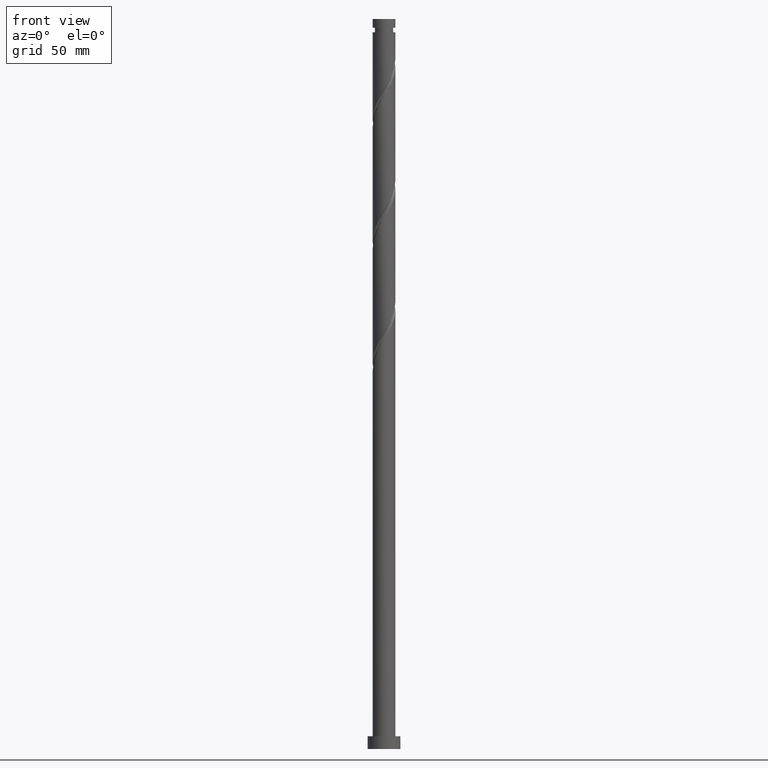
[diagram: clean part render]
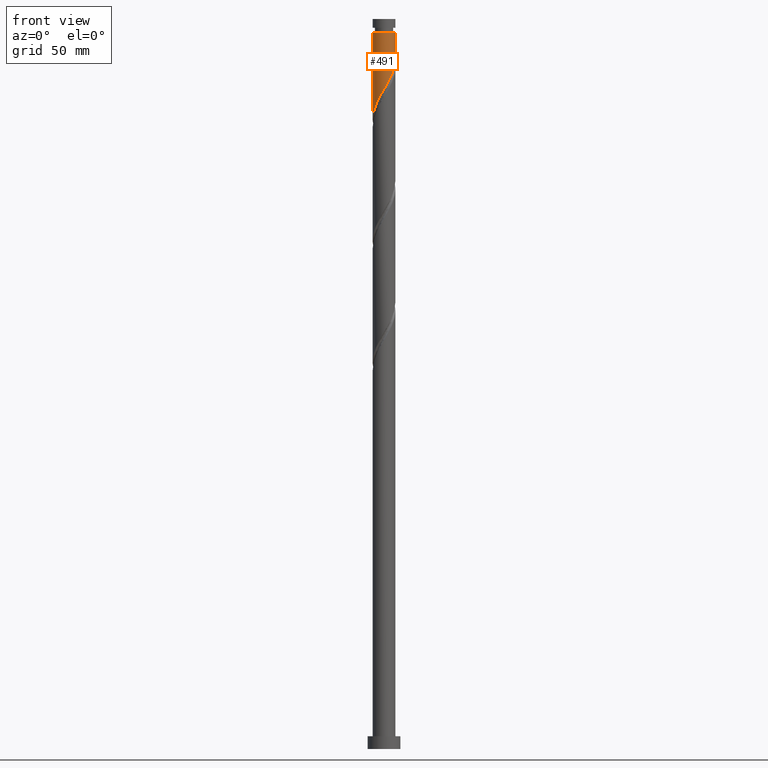
[diagram: same view with one face highlighted and labeled with its STEP entity id]
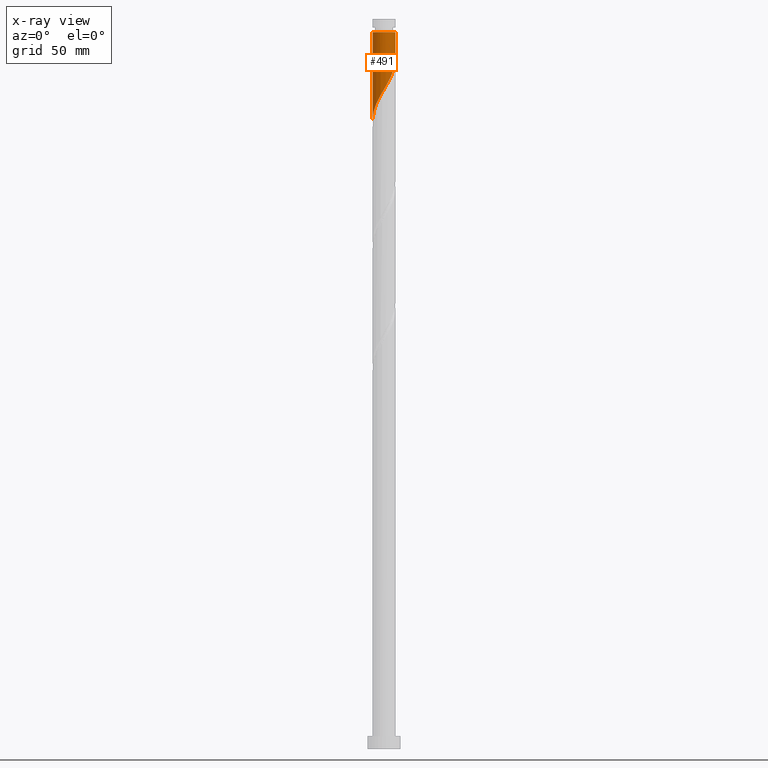
[diagram: x-ray of the same camera — body ghosted, the highlighted face saturated]
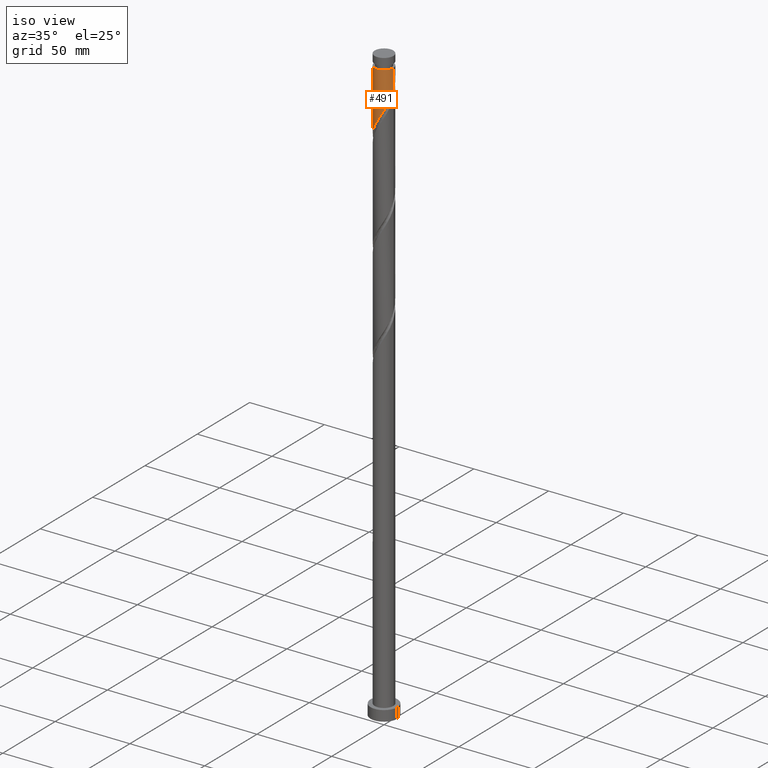
[diagram: same view with one face highlighted and labeled with its STEP entity id]
A machine part, front view. The second image highlights one B-rep face of the part: STEP entity #491.
The next image is the same camera in x-ray: the body ghosted, the highlighted face saturated — about 0% of this face is hidden behind the body in this view.
A second angle (iso view) of the same face is appended — the face is thin or edge-on in the first view.
In plain terms, the highlighted cylindrical surface (edge-blend (fillet) strip) has radius 6.25 mm, axis along (-0, -0, -1).
Its self-contained STEP definition (entity closure, byte-faithful):
#26 = CARTESIAN_POINT ( 'NONE',  ( 6.221452243844894703, -0.5966841522592505331, 377.1899980009226852 ) ) ;
#34 = FACE_OUTER_BOUND ( 'NONE', #196, .T. ) ;
#45 = DIRECTION ( 'NONE',  ( -1.000000000000000000, 0.000000000000000000, 0.000000000000000000 ) ) ;
#59 = CARTESIAN_POINT ( 'NONE',  ( 3.719541372160785286, -5.022699670574009012, 368.3011091120338278 ) ) ;
#89 = CARTESIAN_POINT ( 'NONE',  ( 6.250000000000000000, 7.654042494670957606E-16, 400.0000000000000000 ) ) ;
#129 = EDGE_CURVE ( 'NONE', #1016, #1712, #411, .T. ) ;
#132 = CARTESIAN_POINT ( 'NONE',  ( 6.249999999999963585, 7.654042494670935913E-16, 392.7455535564783418 ) ) ;
#158 = ORIENTED_EDGE ( 'NONE', *, *, #129, .F. ) ;
#178 = ORIENTED_EDGE ( 'NONE', *, *, #305, .T. ) ;
#196 = EDGE_LOOP ( 'NONE', ( #591, #178, #1490, #158 ) ) ;
#213 = DIRECTION ( 'NONE',  ( -0.000000000000000000, -0.000000000000000000, -1.000000000000000000 ) ) ;
#217 = CARTESIAN_POINT ( 'NONE',  ( 5.440886128238414443, -3.075590697661639616, 372.7455535564781712 ) ) ;
#248 = CARTESIAN_POINT ( 'NONE',  ( 0.000000000000000000, 0.000000000000000000, 392.7455535564783418 ) ) ;
#305 = EDGE_CURVE ( 'NONE', #360, #1748, #1524, .T. ) ;
#317 = DIRECTION ( 'NONE',  ( -0.000000000000000000, -0.000000000000000000, -1.000000000000000000 ) ) ;
#360 = VERTEX_POINT ( 'NONE', #132 ) ;
#384 = CARTESIAN_POINT ( 'NONE',  ( -5.383982739937292372, -3.174150257322001956, 350.5233313342559995 ) ) ;
#404 = CARTESIAN_POINT ( 'NONE',  ( -3.627469755814538566, -5.089593615471751598, 354.9677757787005135 ) ) ;
#411 =( BOUNDED_CURVE ( )  B_SPLINE_CURVE ( 2, ( #813, #961, #26, #1797, #553, #1964, #217, #1453, #732, #1331, #59, #1619, #845, #1191, #564, #1157, #689, #1010, #1496, #1609, #1954, #575, #404, #1788, #1779, #415, #384, #1628, #1484, #700, #1030, #1168, #1807 ),
 .UNSPECIFIED., .F., .T. ) 
 B_SPLINE_CURVE_WITH_KNOTS ( ( 3, 2, 2, 2, 2, 2, 2, 2, 2, 2, 2, 2, 2, 2, 2, 2, 3 ),
 ( 0.3045286012773114614, 0.3083333333333333481, 0.3166666666666666519, 0.3250000000000000111, 0.3333333333333333148, 0.3416666666666666741, 0.3499999999999999778, 0.3583333333333333370, 0.3666666666666666408, 0.3750000000000000000, 0.3833333333333333592, 0.3916666666666666630, 0.4000000000000000222, 0.4083333333333333259, 0.4166666666666666852, 0.4249999999999999889, 0.4295286012773114059 ),
 .UNSPECIFIED. ) 
 CURVE ( )  GEOMETRIC_REPRESENTATION_ITEM ( )  RATIONAL_B_SPLINE_CURVE ( ( 0.9066196499552214849, 0.9068171577856342092, 0.9090909090909331525, 0.9041108139711813152, 0.9090909090909331525, 0.9041108139711813152, 0.9090909090909331525, 0.9041108139711813152, 0.9090909090909331525, 0.9041108139711813152, 0.9090909090909331525, 0.9041108139711813152, 0.9090909090909331525, 0.9041108139711813152, 0.9090909090909331525, 0.9041108139711813152, 0.9090909090909331525, 0.9041108139711813152, 0.9090909090909331525, 0.9041108139711813152, 0.9090909090909331525, 0.9041108139711813152, 0.9090909090909331525, 0.9041108139711813152, 0.9090909090909331525, 0.9041108139711813152, 0.9090909090909331525, 0.9041108139711813152, 0.9090909090909331525, 0.9041108139711813152, 0.9090909090909331525, 0.9063845652764802585, 0.9066196499552214849 ) ) 
 REPRESENTATION_ITEM ( '' )  );
#415 = CARTESIAN_POINT ( 'NONE',  ( -5.050366104523113187, -3.740029645886714160, 351.6344424453671991 ) ) ;
#455 = AXIS2_PLACEMENT_3D ( 'NONE', #248, #1146, #873 ) ;
#481 = CARTESIAN_POINT ( 'NONE',  ( 0.000000000000000000, 0.000000000000000000, 400.0000000000000000 ) ) ;
#491 = ADVANCED_FACE ( 'NONE', ( #34 ), #939, .T. ) ;
#553 = CARTESIAN_POINT ( 'NONE',  ( 5.961440974416451155, -1.877157827288006953, 374.9677757787004566 ) ) ;
#564 = CARTESIAN_POINT ( 'NONE',  ( 1.355054121864011973, -6.101338240650107103, 363.8566646675894276 ) ) ;
#575 = CARTESIAN_POINT ( 'NONE',  ( -3.092531911047311066, -5.470856050106012169, 356.0788868898116561 ) ) ;
#591 = ORIENTED_EDGE ( 'NONE', *, *, #795, .F. ) ;
#612 = LINE ( 'NONE', #1245, #1239 ) ;
#622 = DIRECTION ( 'NONE',  ( -0.000000000000000000, -0.000000000000000000, -1.000000000000000000 ) ) ;
#689 = CARTESIAN_POINT ( 'NONE',  ( 0.05690338830112130764, -6.249740954983644237, 361.6344424453672559 ) ) ;
#700 = CARTESIAN_POINT ( 'NONE',  ( -6.134946117391183229, -1.362518138790936417, 347.1899980009227988 ) ) ;
#732 = CARTESIAN_POINT ( 'NONE',  ( 4.682538449988046025, -4.139605496225886583, 370.5233313342559995 ) ) ;
#751 = CARTESIAN_POINT ( 'NONE',  ( 6.250000000000002665, 1.943294004686488274E-15, 378.2043301333331442 ) ) ;
#791 = AXIS2_PLACEMENT_3D ( 'NONE', #481, #317, #45 ) ;
#795 = EDGE_CURVE ( 'NONE', #360, #1016, #1785, .T. ) ;
#813 = CARTESIAN_POINT ( 'NONE',  ( 6.250000000000002665, 1.943294004686488274E-15, 378.2043301333331442 ) ) ;
#845 = CARTESIAN_POINT ( 'NONE',  ( 2.593982488030356137, -5.686277767731000132, 366.0788868898117130 ) ) ;
#873 = DIRECTION ( 'NONE',  ( -1.000000000000000000, 0.000000000000000000, 0.000000000000000000 ) ) ;
#939 = CYLINDRICAL_SURFACE ( 'NONE', #791, 6.250000000000000000 ) ;
#961 = CARTESIAN_POINT ( 'NONE',  ( 6.250000000000001776, -0.2990249955421909189, 377.6957816077690495 ) ) ;
#1010 = CARTESIAN_POINT ( 'NONE',  ( -0.5999708553810141343, -6.255721742095060378, 360.5233313342561132 ) ) ;
#1016 = VERTEX_POINT ( 'NONE', #751 ) ;
#1030 = CARTESIAN_POINT ( 'NONE',  ( -6.209556196377216786, -0.7098674834314663284, 346.0788868898115425 ) ) ;
#1066 = CARTESIAN_POINT ( 'NONE',  ( -6.250000000000002665, -4.335040471992935835E-15, 344.8709967999998298 ) ) ;
#1146 = DIRECTION ( 'NONE',  ( -0.000000000000000000, -0.000000000000000000, -1.000000000000000000 ) ) ;
#1157 = CARTESIAN_POINT ( 'NONE',  ( 0.7137776319832564997, -6.243760167872228095, 362.7455535564782849 ) ) ;
#1168 = CARTESIAN_POINT ( 'NONE',  ( -6.250000000000002665, -0.3560858590402049551, 345.4765881093844087 ) ) ;
#1191 = CARTESIAN_POINT ( 'NONE',  ( 1.996330611744770778, -5.958916313427988776, 364.9677757787005135 ) ) ;
#1239 = VECTOR ( 'NONE', #622, 1000.000000000000000 ) ;
#1245 = CARTESIAN_POINT ( 'NONE',  ( -6.250000000000000000, 0.000000000000000000, 400.0000000000000000 ) ) ;
#1331 = CARTESIAN_POINT ( 'NONE',  ( 4.247448380005635293, -4.631760119114006535, 369.4122202231450274 ) ) ;
#1336 = VECTOR ( 'NONE', #213, 1000.000000000000000 ) ;
#1453 = CARTESIAN_POINT ( 'NONE',  ( 5.117628519970457646, -3.647450873337769295, 371.6344424453671422 ) ) ;
#1484 = CARTESIAN_POINT ( 'NONE',  ( -5.926272746371325617, -1.985394503774113195, 348.3011091120338847 ) ) ;
#1490 = ORIENTED_EDGE ( 'NONE', *, *, #1694, .T. ) ;
#1496 = CARTESIAN_POINT ( 'NONE',  ( -1.243734296383280258, -6.124999999999998224, 359.4122202231450274 ) ) ;
#1524 = CIRCLE ( 'NONE', #455, 6.249999999999963585 ) ;
#1554 = CARTESIAN_POINT ( 'NONE',  ( -6.249999999999963585, 0.000000000000000000, 392.7455535564783418 ) ) ;
#1609 = CARTESIAN_POINT ( 'NONE',  ( -1.887497737385549712, -5.994278257904941398, 358.3011091120339984 ) ) ;
#1619 = CARTESIAN_POINT ( 'NONE',  ( 3.191634364315939720, -5.413639222034013265, 367.1899980009227988 ) ) ;
#1628 = CARTESIAN_POINT ( 'NONE',  ( -5.717599375351472446, -2.608270868757294192, 349.4122202231449137 ) ) ;
#1694 = EDGE_CURVE ( 'NONE', #1748, #1712, #612, .T. ) ;
#1712 = VERTEX_POINT ( 'NONE', #1066 ) ;
#1748 = VERTEX_POINT ( 'NONE', #1554 ) ;
#1779 = CARTESIAN_POINT ( 'NONE',  ( -4.606386852552440736, -4.224180413362104147, 352.7455535564782849 ) ) ;
#1785 = LINE ( 'NONE', #89, #1336 ) ;
#1788 = CARTESIAN_POINT ( 'NONE',  ( -4.162407600581769174, -4.708331180837497243, 353.8566646675894276 ) ) ;
#1797 = CARTESIAN_POINT ( 'NONE',  ( 6.158738212326538175, -1.250585132590493309, 376.0788868898117130 ) ) ;
#1807 = CARTESIAN_POINT ( 'NONE',  ( -6.250000000000002665, -4.335040471992935835E-15, 344.8709967999998298 ) ) ;
#1954 = CARTESIAN_POINT ( 'NONE',  ( -2.490014824216430167, -5.732567154005474563, 357.1899980009227988 ) ) ;
#1964 = CARTESIAN_POINT ( 'NONE',  ( 5.764143736506368576, -2.503730521985516155, 373.8566646675894845 ) ) ;